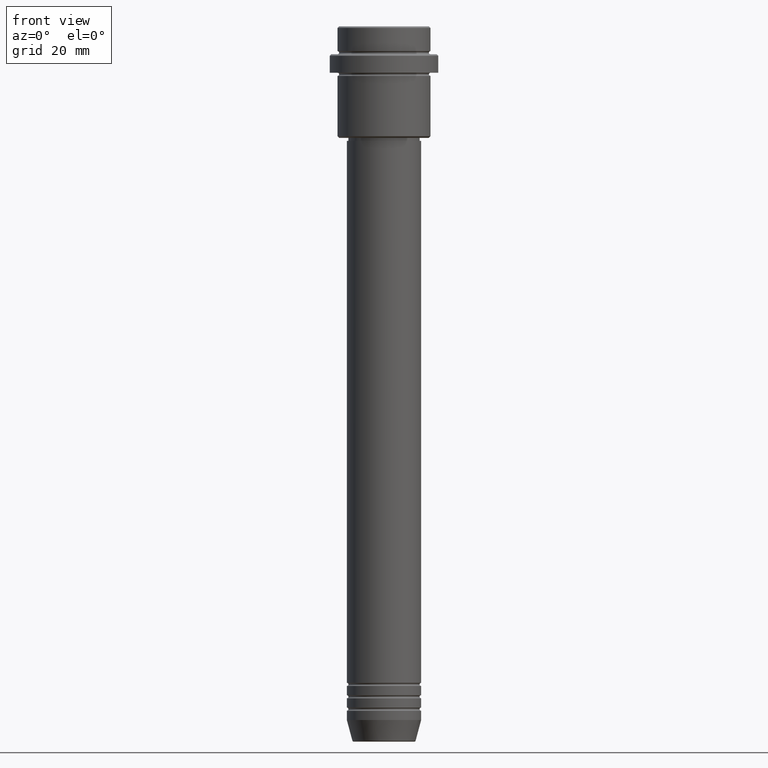
[diagram: clean part render]
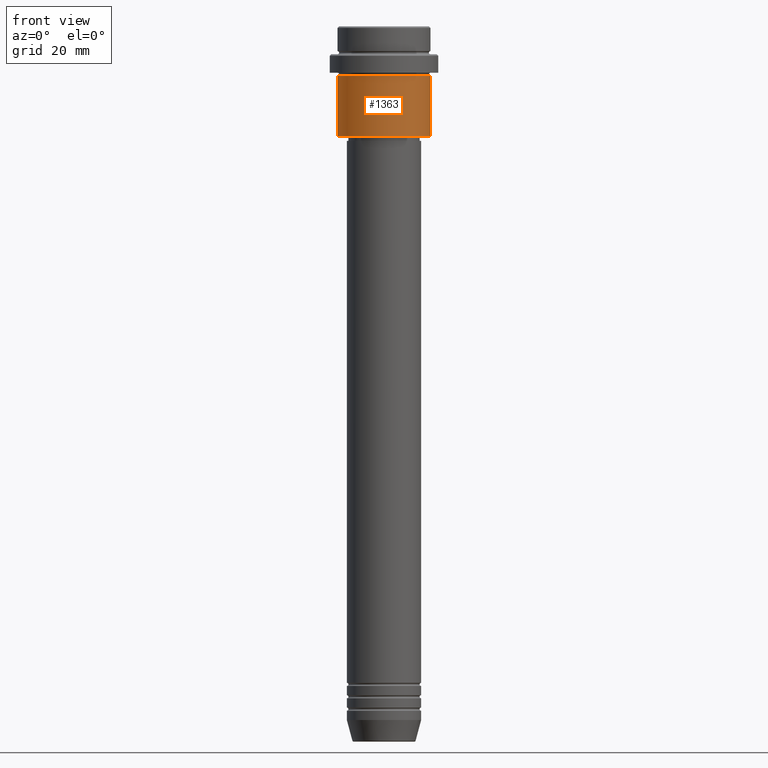
[diagram: same view with one face highlighted and labeled with its STEP entity id]
A machine part, front view. The second image highlights one B-rep face of the part: STEP entity #1363.
In plain terms, the highlighted cylindrical surface (partial cylindrical patch) has radius 15 mm, axis along (-0, -0, 1).
Its self-contained STEP definition (entity closure, byte-faithful):
#77 = DIRECTION ( 'NONE',  ( 1.000000000000000000, 0.000000000000000000, 0.000000000000000000 ) ) ;
#118 = EDGE_CURVE ( 'NONE', #1206, #1189, #574, .T. ) ;
#161 = ORIENTED_EDGE ( 'NONE', *, *, #118, .F. ) ;
#194 = DIRECTION ( 'NONE',  ( -1.000000000000000000, 0.000000000000000000, 0.000000000000000000 ) ) ;
#267 = CIRCLE ( 'NONE', #1108, 15.00000000000000000 ) ;
#297 = DIRECTION ( 'NONE',  ( -0.000000000000000000, -0.000000000000000000, 1.000000000000000000 ) ) ;
#392 = CARTESIAN_POINT ( 'NONE',  ( -15.00000000000000000, 1.836970198721029589E-15, -35.49999999999997158 ) ) ;
#406 = ORIENTED_EDGE ( 'NONE', *, *, #864, .F. ) ;
#408 = DIRECTION ( 'NONE',  ( -0.000000000000000000, -0.000000000000000000, 1.000000000000000000 ) ) ;
#410 = DIRECTION ( 'NONE',  ( -0.000000000000000000, -0.000000000000000000, 1.000000000000000000 ) ) ;
#424 = FACE_OUTER_BOUND ( 'NONE', #1125, .T. ) ;
#451 = ORIENTED_EDGE ( 'NONE', *, *, #1117, .T. ) ;
#461 = VERTEX_POINT ( 'NONE', #392 ) ;
#477 = CARTESIAN_POINT ( 'NONE',  ( -15.00000000000000355, 1.836970198721029983E-15, -16.00000000000000000 ) ) ;
#482 = VECTOR ( 'NONE', #833, 1000.000000000000000 ) ;
#497 = ORIENTED_EDGE ( 'NONE', *, *, #836, .T. ) ;
#574 = CIRCLE ( 'NONE', #1244, 15.00000000000000178 ) ;
#654 = CARTESIAN_POINT ( 'NONE',  ( 0.000000000000000000, 0.000000000000000000, -16.00000000000000000 ) ) ;
#675 = CARTESIAN_POINT ( 'NONE',  ( 0.000000000000000000, 0.000000000000000000, -35.49999999999997158 ) ) ;
#753 = DIRECTION ( 'NONE',  ( 1.000000000000000000, 0.000000000000000000, 0.000000000000000000 ) ) ;
#833 = DIRECTION ( 'NONE',  ( -0.000000000000000000, -0.000000000000000000, 1.000000000000000000 ) ) ;
#836 = EDGE_CURVE ( 'NONE', #461, #1294, #267, .T. ) ;
#858 = CARTESIAN_POINT ( 'NONE',  ( 0.000000000000000000, 0.000000000000000000, 0.000000000000000000 ) ) ;
#859 = CARTESIAN_POINT ( 'NONE',  ( 15.00000000000000000, 0.000000000000000000, 0.000000000000000000 ) ) ;
#864 = EDGE_CURVE ( 'NONE', #461, #1206, #1039, .T. ) ;
#882 = DIRECTION ( 'NONE',  ( -0.000000000000000000, -0.000000000000000000, 1.000000000000000000 ) ) ;
#886 = LINE ( 'NONE', #859, #1103 ) ;
#901 = AXIS2_PLACEMENT_3D ( 'NONE', #858, #297, #753 ) ;
#947 = CARTESIAN_POINT ( 'NONE',  ( 15.00000000000000178, 0.000000000000000000, -16.00000000000000000 ) ) ;
#1039 = LINE ( 'NONE', #1361, #482 ) ;
#1103 = VECTOR ( 'NONE', #410, 1000.000000000000000 ) ;
#1108 = AXIS2_PLACEMENT_3D ( 'NONE', #675, #408, #194 ) ;
#1117 = EDGE_CURVE ( 'NONE', #1294, #1189, #886, .T. ) ;
#1125 = EDGE_LOOP ( 'NONE', ( #406, #497, #451, #161 ) ) ;
#1189 = VERTEX_POINT ( 'NONE', #947 ) ;
#1206 = VERTEX_POINT ( 'NONE', #477 ) ;
#1244 = AXIS2_PLACEMENT_3D ( 'NONE', #654, #882, #77 ) ;
#1294 = VERTEX_POINT ( 'NONE', #1313 ) ;
#1313 = CARTESIAN_POINT ( 'NONE',  ( 15.00000000000000000, 0.000000000000000000, -35.49999999999997158 ) ) ;
#1361 = CARTESIAN_POINT ( 'NONE',  ( -15.00000000000000000, 1.836970198721029589E-15, 0.000000000000000000 ) ) ;
#1363 = ADVANCED_FACE ( 'NONE', ( #424 ), #1392, .T. ) ;
#1392 = CYLINDRICAL_SURFACE ( 'NONE', #901, 15.00000000000000000 ) ;